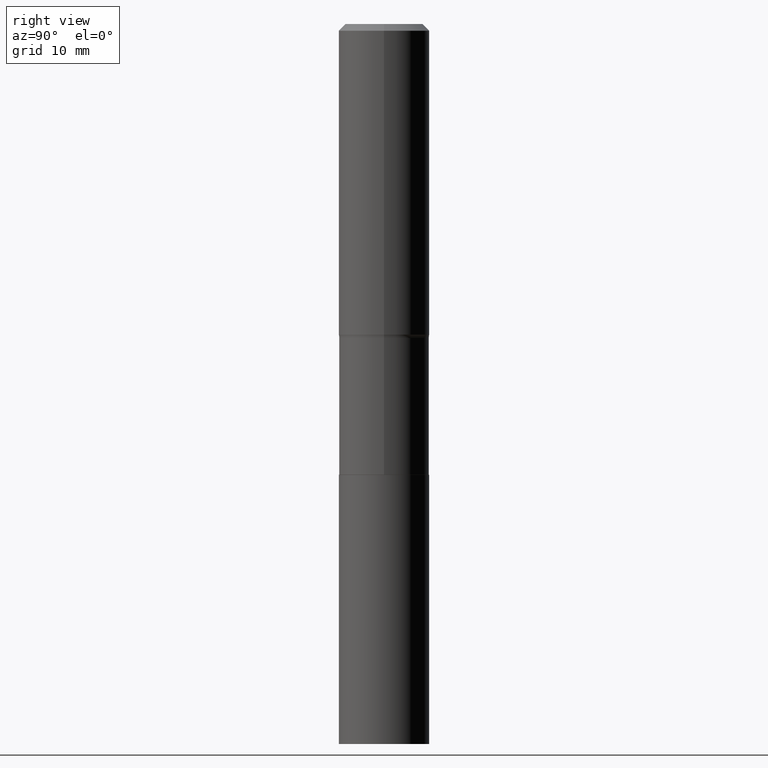
[diagram: clean part render]
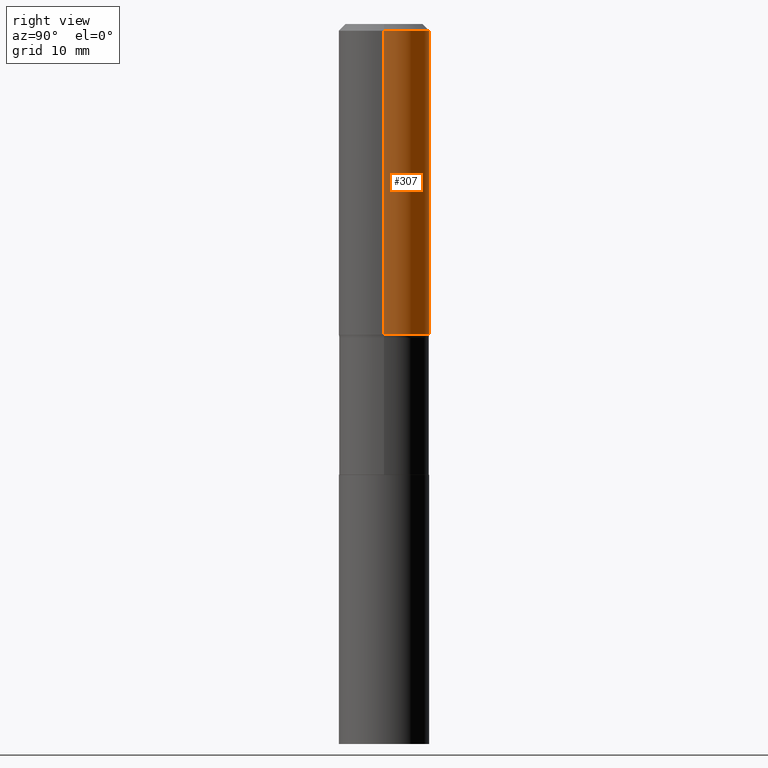
[diagram: same view with one face highlighted and labeled with its STEP entity id]
A machine part, right view. The second image highlights one B-rep face of the part: STEP entity #307.
In plain terms, the highlighted cylindrical surface (partial cylindrical patch) has radius 5.9995 mm, axis along (-0, 0, 1).
Its self-contained STEP definition (entity closure, byte-faithful):
#2 = EDGE_CURVE ( 'NONE', #415, #142, #339, .T. ) ;
#5 = DIRECTION ( 'NONE',  ( 1.000000000000000000, -6.982962677686266711E-15, 4.876176775795935793E-29 ) ) ;
#7 = ORIENTED_EDGE ( 'NONE', *, *, #2, .T. ) ;
#20 = CARTESIAN_POINT ( 'NONE',  ( 0.2362000000000001043, -1.649375784469496920E-15, 1.151752954443000508E-29 ) ) ;
#23 = CARTESIAN_POINT ( 'NONE',  ( 0.2361999999999999933, -1.773078968304709711E-15, -0.03543000000000023908 ) ) ;
#36 = CARTESIAN_POINT ( 'NONE',  ( -0.2362000000000001043, 1.678301941865357380E-15, -1.161852468318209317E-29 ) ) ;
#51 = AXIS2_PLACEMENT_3D ( 'NONE', #336, #443, #83 ) ;
#58 = EDGE_CURVE ( 'NONE', #415, #221, #334, .T. ) ;
#59 = AXIS2_PLACEMENT_3D ( 'NONE', #354, #146, #105 ) ;
#65 = DIRECTION ( 'NONE',  ( -2.445468806185136597E-29, 3.491481338843145583E-15, 1.000000000000000000 ) ) ;
#69 = CARTESIAN_POINT ( 'NONE',  ( 0.2362000000000002153, -7.282337808442698959E-15, -1.613344445323487086 ) ) ;
#81 = AXIS2_PLACEMENT_3D ( 'NONE', #141, #65, #5 ) ;
#83 = DIRECTION ( 'NONE',  ( 1.000000000000000000, -6.982962677686266711E-15, 0.000000000000000000 ) ) ;
#105 = DIRECTION ( 'NONE',  ( 1.000000000000000000, -6.982962677686266711E-15, 0.000000000000000000 ) ) ;
#141 = CARTESIAN_POINT ( 'NONE',  ( 0.000000000000000000, 0.000000000000000000, 0.000000000000000000 ) ) ;
#142 = VERTEX_POINT ( 'NONE', #449 ) ;
#146 = DIRECTION ( 'NONE',  ( -2.445468806185136597E-29, 3.491481338843145583E-15, 1.000000000000000000 ) ) ;
#172 = EDGE_LOOP ( 'NONE', ( #7, #318, #274, #362 ) ) ;
#202 = VECTOR ( 'NONE', #258, 39.37007874015748143 ) ;
#220 = FACE_OUTER_BOUND ( 'NONE', #172, .T. ) ;
#221 = VERTEX_POINT ( 'NONE', #23 ) ;
#230 = VERTEX_POINT ( 'NONE', #377 ) ;
#258 = DIRECTION ( 'NONE',  ( -2.445468806185136877E-29, 3.491481338843145188E-15, 1.000000000000000000 ) ) ;
#274 = ORIENTED_EDGE ( 'NONE', *, *, #320, .F. ) ;
#285 = DIRECTION ( 'NONE',  ( -2.445468806185136877E-29, 3.491481338843145188E-15, 1.000000000000000000 ) ) ;
#307 = ADVANCED_FACE ( 'NONE', ( #220 ), #361, .T. ) ;
#318 = ORIENTED_EDGE ( 'NONE', *, *, #432, .T. ) ;
#320 = EDGE_CURVE ( 'NONE', #221, #230, #406, .T. ) ;
#334 = LINE ( 'NONE', #20, #202 ) ;
#336 = CARTESIAN_POINT ( 'NONE',  ( 3.945383514670648999E-29, -5.632962023973200856E-15, -1.613344445323487086 ) ) ;
#339 = CIRCLE ( 'NONE', #51, 0.2362000000000002153 ) ;
#354 = CARTESIAN_POINT ( 'NONE',  ( 8.664295980313996991E-31, -1.237031838352134818E-16, -0.03543000000000023908 ) ) ;
#361 = CYLINDRICAL_SURFACE ( 'NONE', #81, 0.2362000000000001043 ) ;
#362 = ORIENTED_EDGE ( 'NONE', *, *, #58, .F. ) ;
#377 = CARTESIAN_POINT ( 'NONE',  ( -0.2361999999999999933, -1.200030662038849443E-15, -0.03543000000000023908 ) ) ;
#394 = LINE ( 'NONE', #36, #464 ) ;
#406 = CIRCLE ( 'NONE', #59, 0.2361999999999999933 ) ;
#415 = VERTEX_POINT ( 'NONE', #69 ) ;
#432 = EDGE_CURVE ( 'NONE', #142, #230, #394, .T. ) ;
#443 = DIRECTION ( 'NONE',  ( -2.445468806185136597E-29, 3.491481338843145583E-15, 1.000000000000000000 ) ) ;
#449 = CARTESIAN_POINT ( 'NONE',  ( -0.2362000000000002153, -3.954660082107842884E-15, -1.613344445323487086 ) ) ;
#464 = VECTOR ( 'NONE', #285, 39.37007874015748143 ) ;